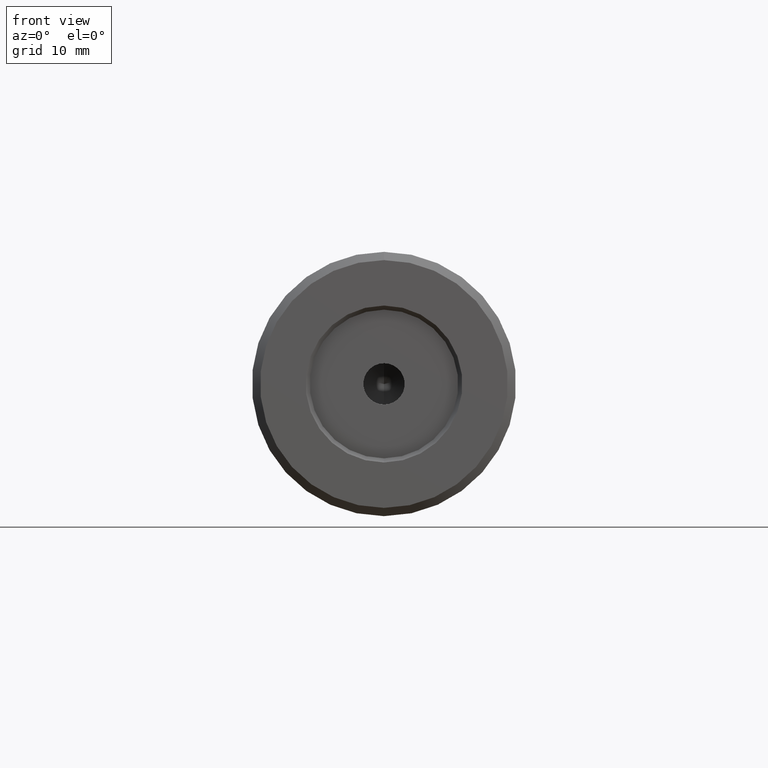
[diagram: clean part render]
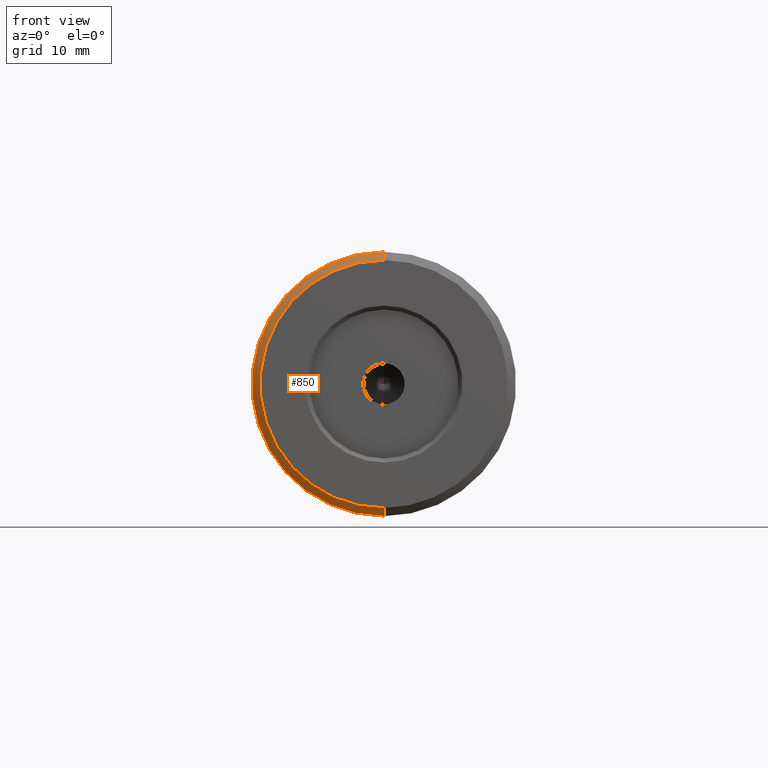
[diagram: same view with one face highlighted and labeled with its STEP entity id]
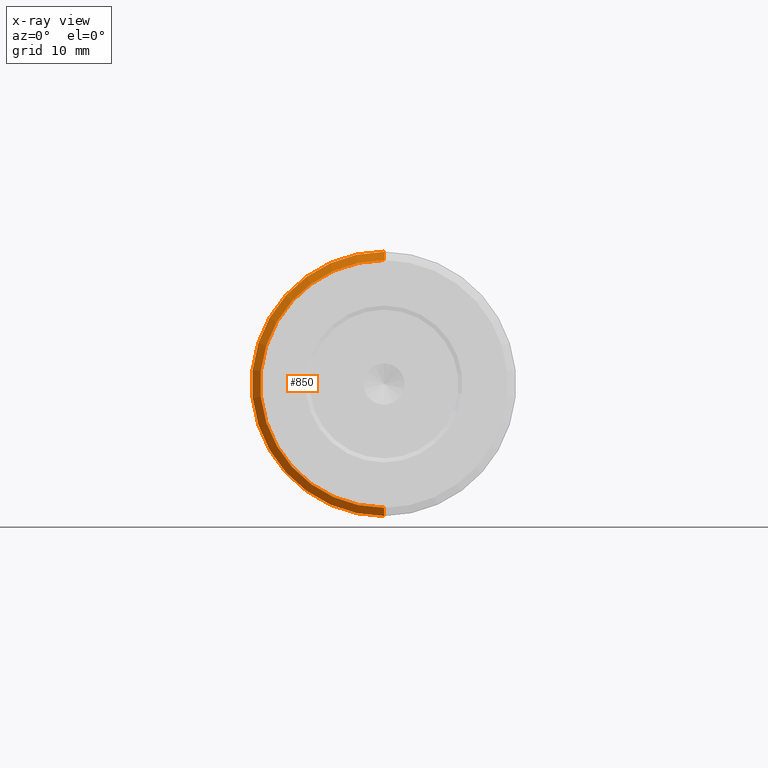
[diagram: x-ray of the same camera — body ghosted, the highlighted face saturated]
A machine part, front view. The second image highlights one B-rep face of the part: STEP entity #850.
The next image is the same camera in x-ray: the body ghosted, the highlighted face saturated — about 0% of this face is hidden behind the body in this view.
In plain terms, the highlighted conical surface has half-angle 45 deg.
Its self-contained STEP definition (entity closure, byte-faithful):
#7 = FACE_OUTER_BOUND ( 'NONE', #744, .T. ) ;
#21 = CARTESIAN_POINT ( 'NONE',  ( 1.959434878635766300E-015, -37.09999999999999400, -16.00000000000000700 ) ) ;
#38 = VECTOR ( 'NONE', #692, 1000.000000000000000 ) ;
#107 = AXIS2_PLACEMENT_3D ( 'NONE', #556, #585, #570 ) ;
#114 = EDGE_CURVE ( 'NONE', #232, #661, #867, .T. ) ;
#156 = DIRECTION ( 'NONE',  ( -0.0000000000000000000, 1.000000000000000000, 0.0000000000000000000 ) ) ;
#209 = CARTESIAN_POINT ( 'NONE',  ( 0.0000000000000000000, -37.09999999999999400, 0.0000000000000000000 ) ) ;
#232 = VERTEX_POINT ( 'NONE', #457 ) ;
#283 = AXIS2_PLACEMENT_3D ( 'NONE', #779, #364, #687 ) ;
#285 = CARTESIAN_POINT ( 'NONE',  ( 0.0000000000000000000, -38.09999999999999400, 15.00000000000000900 ) ) ;
#317 = LINE ( 'NONE', #1010, #334 ) ;
#334 = VECTOR ( 'NONE', #597, 1000.000000000000000 ) ;
#353 = CARTESIAN_POINT ( 'NONE',  ( 1.959434878635766300E-015, -37.09999999999999400, -16.00000000000000700 ) ) ;
#359 = LINE ( 'NONE', #353, #38 ) ;
#364 = DIRECTION ( 'NONE',  ( -0.0000000000000000000, 1.000000000000000000, 0.0000000000000000000 ) ) ;
#375 = VERTEX_POINT ( 'NONE', #888 ) ;
#382 = EDGE_CURVE ( 'NONE', #661, #375, #317, .T. ) ;
#457 = CARTESIAN_POINT ( 'NONE',  ( 1.898202538678398700E-015, -38.09999999999999400, -15.00000000000000900 ) ) ;
#482 = VERTEX_POINT ( 'NONE', #21 ) ;
#556 = CARTESIAN_POINT ( 'NONE',  ( 0.0000000000000000000, -37.09999999999999400, 0.0000000000000000000 ) ) ;
#570 = DIRECTION ( 'NONE',  ( 0.0000000000000000000, 0.0000000000000000000, 1.000000000000000000 ) ) ;
#585 = DIRECTION ( 'NONE',  ( 0.0000000000000000000, 1.000000000000000000, 0.0000000000000000000 ) ) ;
#597 = DIRECTION ( 'NONE',  ( 0.0000000000000000000, 0.7071067811865482400, 0.7071067811865469100 ) ) ;
#604 = CONICAL_SURFACE ( 'NONE', #876, 16.00000000000000700, 0.7853981633974473900 ) ;
#661 = VERTEX_POINT ( 'NONE', #285 ) ;
#687 = DIRECTION ( 'NONE',  ( 0.0000000000000000000, 0.0000000000000000000, 1.000000000000000000 ) ) ;
#692 = DIRECTION ( 'NONE',  ( 8.659560562354925500E-017, 0.7071067811865482400, -0.7071067811865469100 ) ) ;
#698 = ORIENTED_EDGE ( 'NONE', *, *, #895, .F. ) ;
#720 = ORIENTED_EDGE ( 'NONE', *, *, #114, .T. ) ;
#744 = EDGE_LOOP ( 'NONE', ( #698, #720, #781, #855 ) ) ;
#779 = CARTESIAN_POINT ( 'NONE',  ( 0.0000000000000000000, -38.09999999999999400, 0.0000000000000000000 ) ) ;
#781 = ORIENTED_EDGE ( 'NONE', *, *, #382, .T. ) ;
#800 = DIRECTION ( 'NONE',  ( 0.0000000000000000000, 0.0000000000000000000, 1.000000000000000000 ) ) ;
#850 = ADVANCED_FACE ( 'NONE', ( #7 ), #604, .T. ) ;
#855 = ORIENTED_EDGE ( 'NONE', *, *, #871, .F. ) ;
#867 = CIRCLE ( 'NONE', #283, 15.00000000000000900 ) ;
#871 = EDGE_CURVE ( 'NONE', #482, #375, #991, .T. ) ;
#876 = AXIS2_PLACEMENT_3D ( 'NONE', #209, #156, #800 ) ;
#888 = CARTESIAN_POINT ( 'NONE',  ( 0.0000000000000000000, -37.09999999999999400, 16.00000000000000700 ) ) ;
#895 = EDGE_CURVE ( 'NONE', #232, #482, #359, .T. ) ;
#991 = CIRCLE ( 'NONE', #107, 16.00000000000000700 ) ;
#1010 = CARTESIAN_POINT ( 'NONE',  ( 0.0000000000000000000, -37.09999999999999400, 16.00000000000000700 ) ) ;